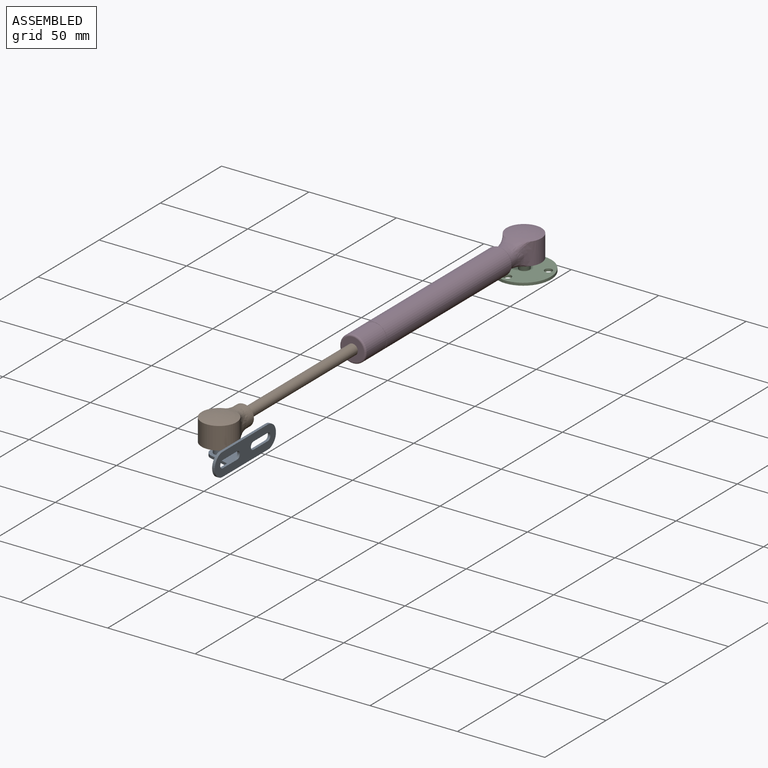
[diagram: assembled view]
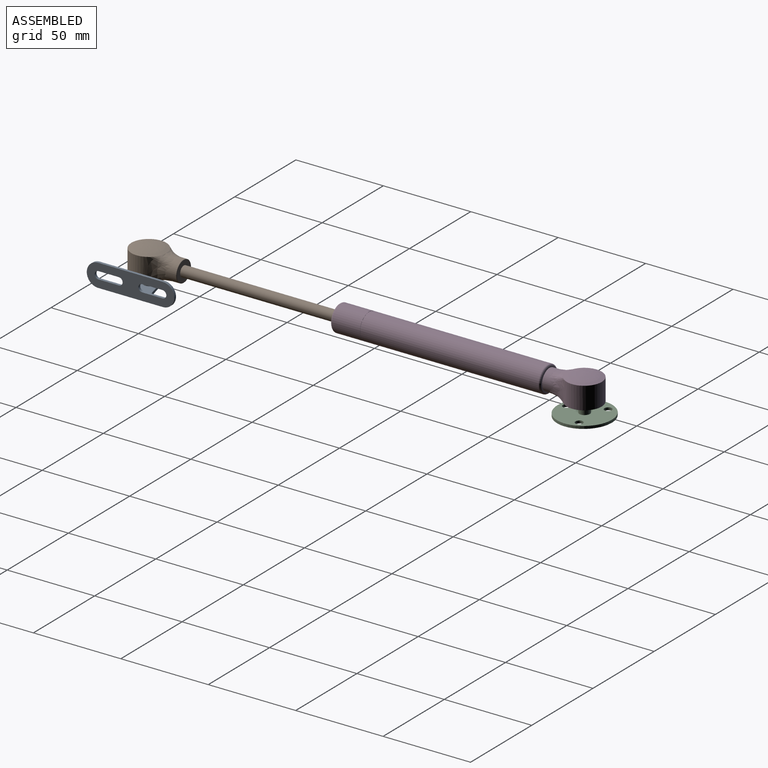
[diagram: assembled view, second angle]
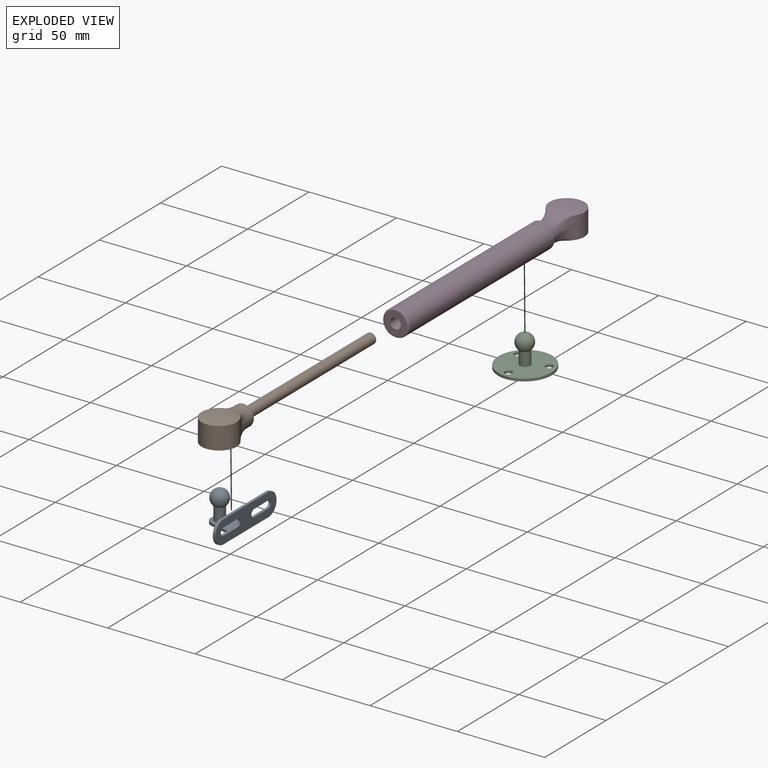
[diagram: exploded view]
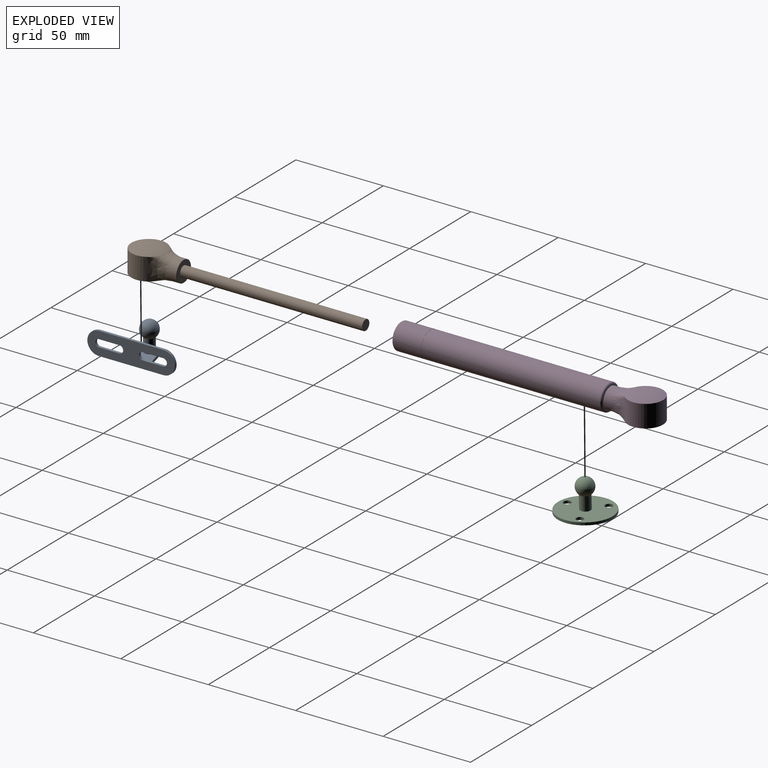
[diagram: exploded view, second angle]
ASSEMBLY  parts=4 mates=3
PART A: 20 faces, bbox 20x50x18.1 mm
  f0: sphere r=4.9mm, area 270.1mm2, adj f1
  f1: cylinder r=3mm len=7.8mm, axis (0,0,1), area 147mm2, adj f0,f4
  f2: plane 14.74x3.77mm, normal (-0.25,-0.97,0), area 22.8mm2, adj f4,f6,f7,f8
  f3: plane 14.74x3.77mm, normal (-0.25,0.97,0), area 22.8mm2, adj f4,f6,f7,f8
  f4: plane 18.5x17.23mm, normal (0,0,1), area 197.1mm2, adj f1,f2,f3,f6,f8
  f5: plane 50x13mm, normal (1,0,0), area 484.1mm2, adj f7,f9,f10,f11,f12,f13,f14,f15
  f6: cylinder r=5mm len=9.69mm, axis (0,0,1), area 19.8mm2, adj f2,f3,f4,f7
  f7: plane 37x20mm, normal (0,0,-1), area 280.9mm2, adj f2,f3,f5,f6,f8,f15,f16
  f8: plane 50x13mm, normal (-1,0,0), area 458.2mm2, adj f2,f3,f4,f7,f9,f10,f11,f12
  f9: cylinder r=2.15mm len=4.3mm, axis (1,0,0), area 10.1mm2, adj f5,f8,f10,f19
  f10: plane 11.7x1.5mm, normal (0,0,-1), area 17.5mm2, adj f5,f8,f9,f11
  f11: cylinder r=2.15mm len=4.3mm, axis (1,0,0), area 10.1mm2, adj f5,f8,f10,f19
  f12: cylinder r=2.15mm len=4.3mm, axis (1,0,0), area 10.1mm2, adj f5,f8,f13,f17
  f13: plane 11.7x1.5mm, normal (0,0,1), area 17.5mm2, adj f5,f8,f12,f14
  f14: cylinder r=2.15mm len=4.3mm, axis (1,0,0), area 10.1mm2, adj f5,f8,f13,f17
  f15: cylinder r=6.5mm len=13mm, axis (1,0,0), area 30.6mm2, adj f5,f7,f8,f18
  f16: cylinder r=6.5mm len=13mm, axis (1,0,0), area 30.6mm2, adj f5,f7,f8,f18
  f17: plane 11.7x1.5mm, normal (0,0,-1), area 17.5mm2, adj f5,f8,f12,f14
  f18: plane 37x1.5mm, normal (0,0,1), area 55.5mm2, adj f5,f8,f15,f16
  f19: plane 11.7x1.5mm, normal (0,0,1), area 17.5mm2, adj f5,f8,f9,f11
PART B: 15 faces, bbox 23.4x137.4x19.8 mm
  f0: plane 6x6mm, normal (0,1,0), area 28.3mm2, adj f1
  f1: cylinder r=3mm len=104mm, axis (0,-1,0), area 1960.4mm2, adj f0,f2
  f2: plane 11.6x11.6mm, normal (0,1,0), area 77.4mm2, adj f1,f3
  f3: torus R=5.8mm, axis (0,-1,0), area 11.7mm2, adj f2,f4
  f4: cylinder r=6mm len=12mm, axis (0,-1,0), area 166.1mm2, adj f3,f5,f11,f12,f13,f14
  f5: bspline ~16.2x10.53mm, area 77.3mm2, adj f4,f6,f11,f14
  f6: cylinder r=10mm len=20mm, axis (0,0,-1), area 550.6mm2, adj f5,f7,f8,f12
  f7: revolved ~16.05x10mm, area 0mm2, adj f6,f11
  f8: plane 23.36x23.36mm, normal (0,0,-1), area 235.6mm2, adj f6,f9,f13,f14
  f9: cylinder r=5mm len=10mm, axis (0,0,1), area 188.5mm2, adj f8,f10
  f10: sphere r=5mm, area 157.1mm2, adj f9
  f11: bspline ~16.59x11.53mm, area 107.8mm2, adj f4,f5,f7,f12
  f12: bspline ~16.41x10.53mm, area 77.3mm2, adj f4,f6,f11,f13
  f13: bspline ~11.05x8.43mm, area 24.3mm2, adj f4,f8,f12
  f14: bspline ~11.05x8.43mm, area 24.3mm2, adj f4,f5,f8
PART C: 8 faces, bbox 31x31x18.1 mm
  f0: sphere r=4.9mm, area 270.1mm2, adj f1
  f1: cylinder r=3mm len=7.8mm, axis (0,0,1), area 147mm2, adj f0,f7
  f2: cylinder r=2.12mm len=4.25mm, axis (0,0,1), area 20mm2, adj f6,f7
  f3: cylinder r=2.12mm len=4.25mm, axis (0,0,1), area 20mm2, adj f6,f7
  f4: cylinder r=2.12mm len=4.25mm, axis (0,0,1), area 20mm2, adj f6,f7
  f5: cylinder r=15.5mm len=31mm, axis (0,0,1), area 146.1mm2, adj f6,f7
  f6: plane 31x31mm, normal (0,0,-1), area 712.2mm2, adj f2,f3,f4,f5
  f7: plane 31x31mm, normal (0,0,1), area 683.9mm2, adj f1,f2,f3,f4,f5
PART D: 23 faces, bbox 23.4x153.4x19.9 mm
  f0: plane 13x13mm, normal (0,-1,0), area 104.5mm2, adj f1,f21
  f1: torus R=6.5mm, axis (0,1,0), area 70.4mm2, adj f0,f2
  f2: cylinder r=7.5mm len=16mm, axis (0,1,0), area 754mm2, adj f1,f3
  f3: plane 15x15mm, normal (0,1,0), area 4.7mm2, adj f2,f4
  f4: cylinder r=7.4mm len=14.8mm, axis (0,1,0), area 23.2mm2, adj f3,f5
  f5: plane 15x15mm, normal (0,-1,0), area 4.7mm2, adj f4,f6
  f6: cylinder r=7.5mm len=101.5mm, axis (0,1,0), area 4783.1mm2, adj f5,f7
  f7: torus R=6.5mm, axis (0,1,0), area 70.4mm2, adj f6,f8
  f8: plane 13x13mm, normal (0,1,0), area 27mm2, adj f7,f9
  f9: torus R=5.8mm, axis (0,1,0), area 11.7mm2, adj f8,f10
  f10: cylinder r=6mm len=12mm, axis (0,1,0), area 166.1mm2, adj f9,f11,f17,f18,f19,f20
  f11: bspline ~16.2x10.53mm, area 77.3mm2, adj f10,f12,f17,f20
  f12: cylinder r=10mm len=20mm, axis (0,0,-1), area 550.6mm2, adj f11,f13,f14,f18
  f13: revolved ~16.05x10mm, area 0mm2, adj f12,f17
  f14: plane 23.36x23.36mm, normal (0,0,-1), area 235.6mm2, adj f12,f15,f19,f20
  f15: cylinder r=5mm len=10mm, axis (0,0,1), area 188.5mm2, adj f14,f16
  f16: sphere r=5mm, area 157.1mm2, adj f15
  f17: bspline ~16.59x11.53mm, area 107.8mm2, adj f10,f11,f13,f18
  f18: bspline ~16.41x10.53mm, area 77.3mm2, adj f10,f12,f17,f19
  f19: bspline ~10.62x8.15mm, area 24.3mm2, adj f10,f14,f18
  f20: bspline ~10.62x8.15mm, area 24.3mm2, adj f10,f11,f14
  f21: cylinder r=3mm len=100mm, axis (0,-1,0), area 1885mm2, adj f0,f22
  f22: plane 6x6mm, normal (0,-1,0), area 28.3mm2, adj f21
PLACE A rot(axis=(-0.6,-0.24,-0.76),0deg) t=(0,-109,0)mm
PLACE B at identity
PLACE C rot(axis=(0.16,-0.02,-0.99),7.8deg) t=(0,140,0)mm
PLACE D at identity fixed
MATE ball A.f6 <-> B.f9  axis (0,0,1) through (0,-109,0)mm
MATE slider B.f1 <-> D.f21  axis (0,-1,0) through (0,0,0)mm
MATE ball C.f1 <-> D.f15  axis (0,-0.02,1) through (0,140,0)mm
